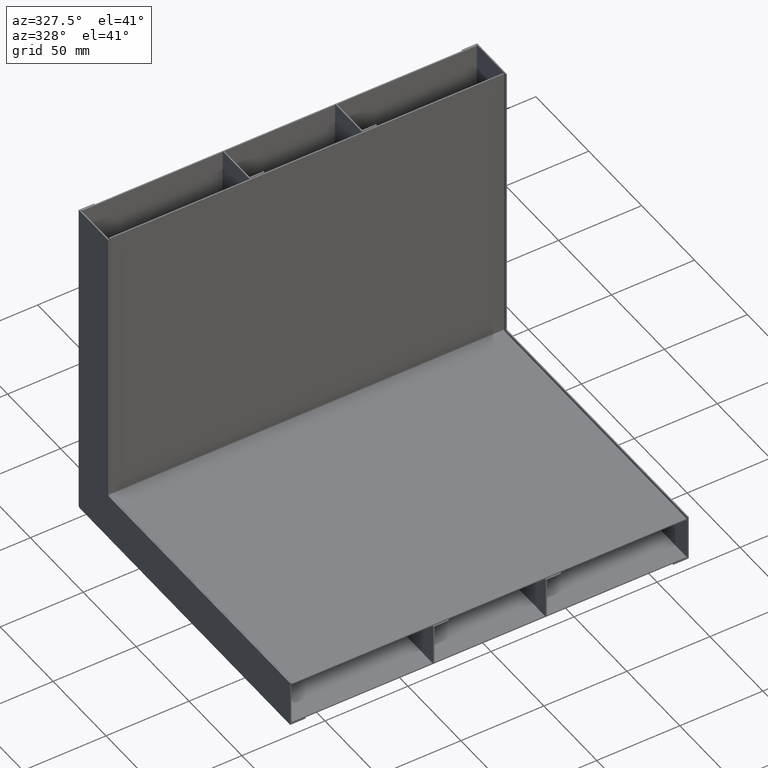
[diagram: clean part render]
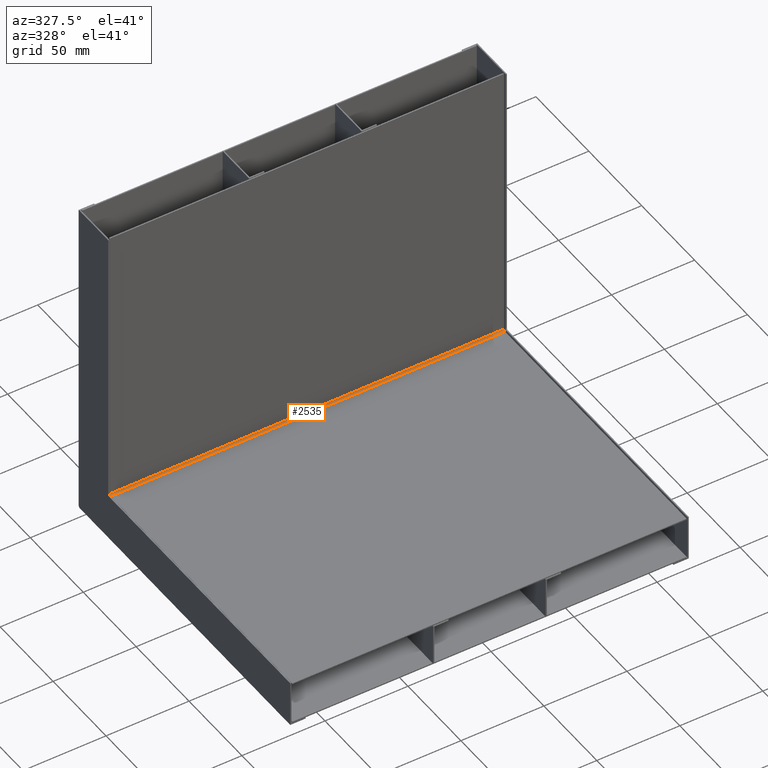
[diagram: same view with one face highlighted and labeled with its STEP entity id]
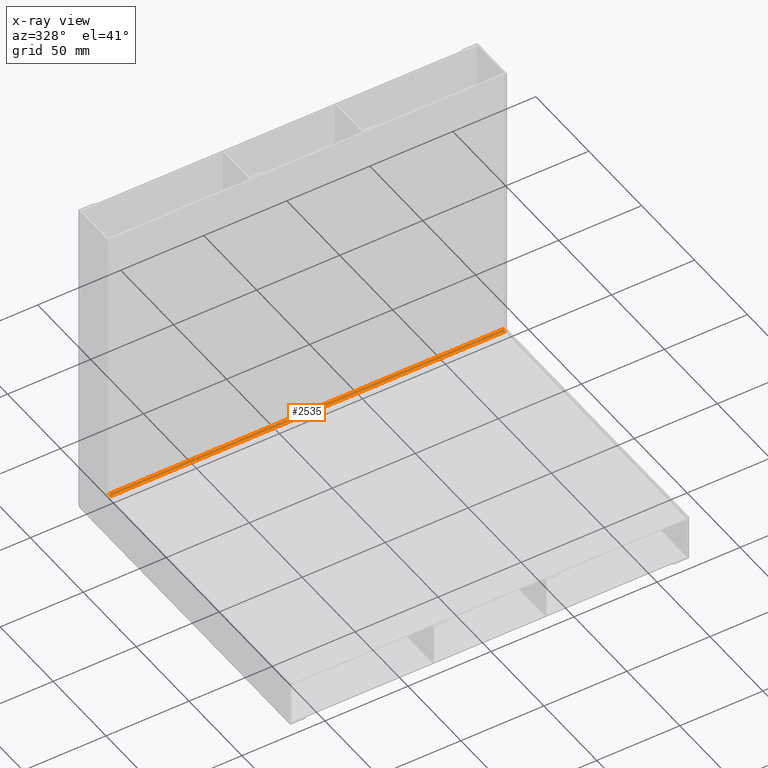
[diagram: x-ray of the same camera — body ghosted, the highlighted face saturated]
A machine part, auxiliary view. The second image highlights one B-rep face of the part: STEP entity #2535.
The next image is the same camera in x-ray: the body ghosted, the highlighted face saturated — about 0% of this face is hidden behind the body in this view.
In plain terms, the highlighted cylindrical surface (edge-blend (fillet) strip) has radius 1 mm, axis along (-1, 0, 0).
Its self-contained STEP definition (entity closure, byte-faithful):
#2321=DIRECTION('',(1.E0,0.E0,0.E0));
#2322=VECTOR('',#2321,2.375E2);
#2323=CARTESIAN_POINT('',(-1.1875E2,-7.992247467147E-2,1.75E0));
#2324=LINE('',#2323,#2322);
#2328=CARTESIAN_POINT('',(1.1875E2,-1.079922474672E0,1.75E0));
#2329=DIRECTION('',(-1.E0,0.E0,0.E0));
#2330=DIRECTION('',(0.E0,1.E0,0.E0));
#2331=AXIS2_PLACEMENT_3D('',#2328,#2329,#2330);
#2336=CARTESIAN_POINT('',(-1.1875E2,-1.079922474672E0,1.75E0));
#2337=DIRECTION('',(1.E0,0.E0,0.E0));
#2338=DIRECTION('',(0.E0,5.573319583618E-14,-1.E0));
#2339=AXIS2_PLACEMENT_3D('',#2336,#2337,#2338);
#2365=DIRECTION('',(1.E0,0.E0,0.E0));
#2366=VECTOR('',#2365,2.375E2);
#2367=CARTESIAN_POINT('',(-1.1875E2,-1.079922474671E0,7.5E-1));
#2368=LINE('',#2367,#2366);
#2441=CARTESIAN_POINT('',(1.1875E2,-7.992247467147E-2,1.75E0));
#2443=VERTEX_POINT('',#2441);
#2448=CARTESIAN_POINT('',(-1.1875E2,-7.992247467147E-2,1.75E0));
#2449=VERTEX_POINT('',#2448);
#2454=CARTESIAN_POINT('',(1.1875E2,-1.079922474671E0,7.5E-1));
#2456=VERTEX_POINT('',#2454);
#2464=CARTESIAN_POINT('',(-1.1875E2,-1.079922474671E0,7.5E-1));
#2465=VERTEX_POINT('',#2464);
#2522=CARTESIAN_POINT('',(2.375110048613E2,-1.079922474672E0,1.75E0));
#2523=DIRECTION('',(-1.E0,0.E0,0.E0));
#2524=DIRECTION('',(0.E0,0.E0,1.E0));
#2525=AXIS2_PLACEMENT_3D('',#2522,#2523,#2524);
#2526=CYLINDRICAL_SURFACE('',#2525,1.E0);
#2527=ORIENTED_EDGE('',*,*,#2512,.T.);
#2528=ORIENTED_EDGE('',*,*,#2502,.T.);
#2530=ORIENTED_EDGE('',*,*,#2529,.F.);
#2532=ORIENTED_EDGE('',*,*,#2531,.T.);
#2533=EDGE_LOOP('',(#2527,#2528,#2530,#2532));
#2534=FACE_OUTER_BOUND('',#2533,.F.);
#2332=CIRCLE('',#2331,1.E0);
#2340=CIRCLE('',#2339,1.E0);
#2502=EDGE_CURVE('',#2443,#2456,#2332,.T.);
#2512=EDGE_CURVE('',#2449,#2443,#2324,.T.);
#2529=EDGE_CURVE('',#2465,#2456,#2368,.T.);
#2531=EDGE_CURVE('',#2465,#2449,#2340,.T.);
#2535=ADVANCED_FACE('',(#2534),#2526,.F.);